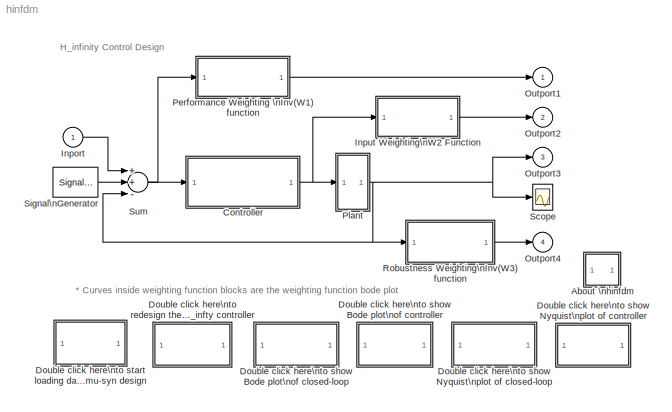
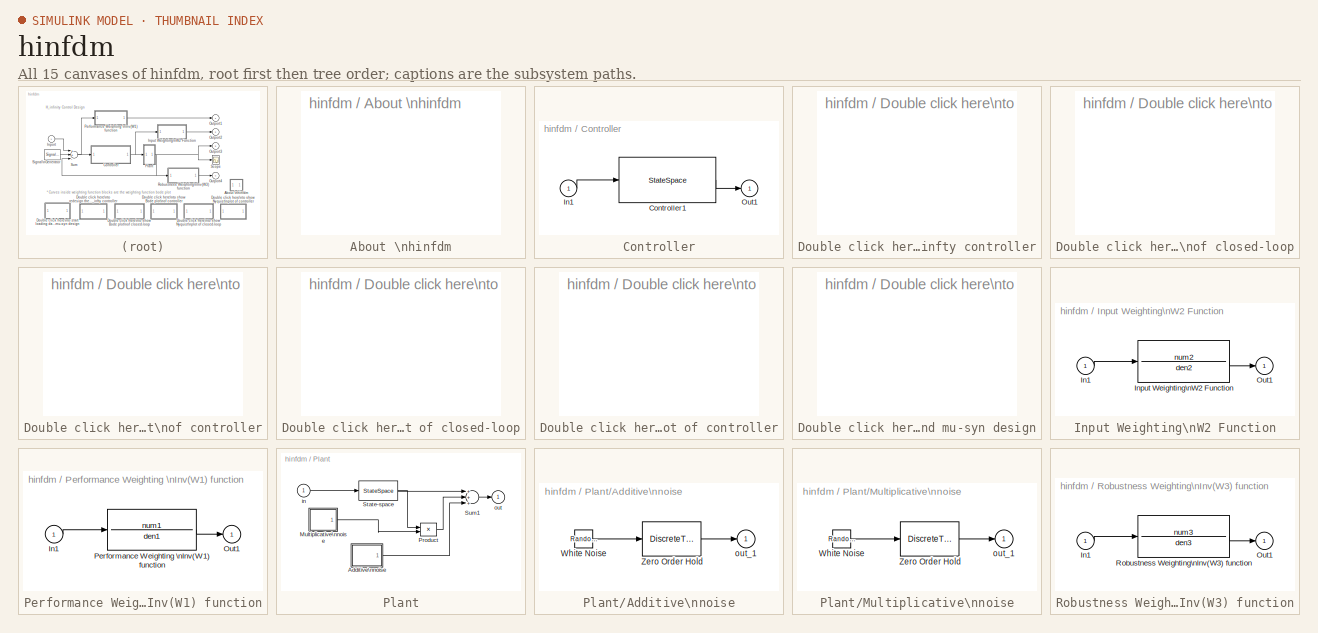
[diagram: thumbnail index - all 15 canvases of the model, root first then tree order]
MODEL hinfdm
KIND model
CONFIG AbsTol = 1e-6
CONFIG FixedStep = auto
CONFIG MaxStep = 0.1
CONFIG MinStep = auto
CONFIG PreLoadFcn = hinfdata
CONFIG RelTol = 1e-3
CONFIG Solver = ode23
CONFIG SolverMode = SingleTasking
CONFIG StartTime = 0.0
CONFIG StopTime = 200
BLOCK [SubSystem] About \nhinfdm
  MaskDisplay = disp('?')
  MaskIconFrame = on
  MaskIconOpaque = on
  MaskIconRotate = none
  MaskIconUnits = autoscale
  OpenFcn = clc; more(24); help hinfdata; more off
  Ports = []
  TreatAsAtomicUnit = off
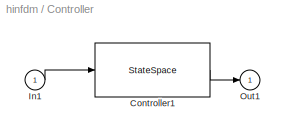
BLOCK [SubSystem] Controller
  MaskCallbackString = |||
  MaskDescription = H_infty controller.\n(Requires Control Toolbox and RCT)
  MaskDisplay = disp('H_infty Controller')
  MaskEnableString = on,on,on,on
  MaskHelp = H_infty controller design. Mask and unmask this block to see how it works.
  MaskIconFrame = on
  MaskIconOpaque = on
  MaskIconRotate = none
  MaskIconUnits = autoscale
  MaskInitialization = ae=@1; be=@2; ce=@3; de=@4;
  MaskPromptString = Controller Matrix A:|Controller Matrix B:|Controller Matrix C:|Controller Matrix D:
  MaskStyleString = edit,edit,edit,edit
  MaskToolTipString = on,on,on,on
  MaskTunableValueString = on,on,on,on
  MaskType = H_infty CONTROLLER
  MaskValueString = ae|be|ce|de
  MaskVarAliasString = ,,,
  MaskVisibilityString = on,on,on,on
  Ports = [1, 1]
  TreatAsAtomicUnit = off
BLOCK [StateSpace] Controller/Controller1
  A = ae
  B = be
  C = ce
  D = de
BLOCK [Inport] Controller/In1
BLOCK [Outport] Controller/Out1
  InitialOutput = 0
BLOCK [SubSystem] Double click here\nto redesign the\nH_infty controller
  MaskDisplay = disp('Re-Design')
  MaskIconFrame = on
  MaskIconOpaque = on
  MaskIconRotate = none
  MaskIconUnits = autoscale
  OpenFcn = if ~exist('obalreal'),fprintf('\\nMust be licensed for RCT Toolbox\\n'), else, fprintf('\\nCtrl_C to abort RCT Calculation\\n\\n'); hinfdes1; end
  Ports = []
  TreatAsAtomicUnit = off
BLOCK [SubSystem] Double click here\nto show Bode plot\nof closed-loop
  MaskDisplay = disp('Closed-Loop\\nBode Plot')
  MaskIconFrame = on
  MaskIconOpaque = on
  MaskIconRotate = none
  MaskIconUnits = autoscale
  OpenFcn = if ~exist('ae'),fprintf('\\nMust Load Data & Design First\\n'),else [x,y,z,w]=series(a,b,c,d,ae,be,ce,de);[x,y,z,w]=cloop(x,y,z,w,-1); [x,y,w]=bode(x,y,z,w); clf; subplot(211); loglog(w,x(:,1)); subplot(212); semilogx(w,y(:,1)); subplot(111);end
  Ports = []
  TreatAsAtomicUnit = off
BLOCK [SubSystem] Double click here\nto show Bode plot\nof controller
  MaskDisplay = disp('Controller\\nBode Plot')
  MaskIconFrame = on
  MaskIconOpaque = on
  MaskIconRotate = none
  MaskIconUnits = autoscale
  OpenFcn = if ~exist('ae'),fprintf('\\nMust Load Data & Design First\\n'),else  [x,y,w]=bode(ae,be,ce,de); clf; subplot(211); loglog(w,x); subplot(212); semilogx(w,y); subplot(111); end
  Ports = []
  TreatAsAtomicUnit = off
BLOCK [SubSystem] Double click here\nto show Nyquist\nplot of closed-loop
  MaskDisplay = disp('Closed-Loop\\nNyquist')
  MaskIconFrame = on
  MaskIconOpaque = on
  MaskIconRotate = none
  MaskIconUnits = autoscale
  OpenFcn = if ~exist('ae'), fprintf('\\nMust Load Data & Desgin First\\n'), else,[x,y,z,w]=feedback(a,b,c,d,ae,be,ce,de,-1); clf, nyquist(x,y,z,w); end
  Ports = []
  TreatAsAtomicUnit = off
BLOCK [SubSystem] Double click here\nto show Nyquist\nplot of controller
  MaskDisplay = disp('Controller\\nNyquist')
  MaskIconFrame = on
  MaskIconOpaque = on
  MaskIconRotate = none
  MaskIconUnits = autoscale
  OpenFcn = if ~exist('ae'), fprintf('\\nMust Load Data & Desgin First\\n'), else,clf; nyquist(ae,be,ce,de), end
  Ports = []
  TreatAsAtomicUnit = off
BLOCK [SubSystem] Double click here\nto start loading data\nand mu-syn design
  MaskDisplay = disp('Re-Load\\nData')
  MaskIconFrame = on
  MaskIconOpaque = on
  MaskIconRotate = none
  MaskIconUnits = autoscale
  OpenFcn = if ~exist('obalreal'),fprintf('\\nMust be licensed for RCT Toolbox\\n'), else, fprintf('\\nCtrl_C to abort RCT Calculation\\n\\n'); hinfdata;end
  Ports = []
  TreatAsAtomicUnit = off
BLOCK [Inport] Inport
BLOCK [SubSystem] Input Weighting\nW2 Function
  MaskCallbackString = |
  MaskDescription = Transfer Function\nnumerator and denominator:
  MaskDisplay = plot(log10(w2),log10(ma2));
  MaskEnableString = on,on
  MaskHelp = Transfer Function
  MaskIconFrame = on
  MaskIconOpaque = on
  MaskIconRotate = none
  MaskIconUnits = autoscale
  MaskInitialization = num2=@1;den2=@2;[ma2,pa2,w2]=bode(num2,den2);
  MaskPromptString = numerator:|denominator:
  MaskStyleString = edit,edit
  MaskToolTipString = on,on
  MaskTunableValueString = on,on
  MaskType = polynomial: num/den
  MaskValueString = num2|den2
  MaskVarAliasString = ,
  MaskVisibilityString = on,on
  Ports = [1, 1]
  TreatAsAtomicUnit = off
BLOCK [Inport] Input Weighting\nW2 Function/In1
BLOCK [TransferFcn] Input Weighting\nW2 Function/Input Weighting\nW2 Function
  Denominator = den2
  Numerator = num2
BLOCK [Outport] Input Weighting\nW2 Function/Out1
  InitialOutput = 0
BLOCK [Outport] Outport1
  InitialOutput = 0
BLOCK [Outport] Outport2
  InitialOutput = 0
  Port = 2
BLOCK [Outport] Outport3
  InitialOutput = 0
  Port = 3
BLOCK [Outport] Outport4
  InitialOutput = 0
  Port = 4
BLOCK [SubSystem] Performance Weighting \nInv(W1) function
  MaskCallbackString = |
  MaskDescription = Transfer function\n numerator and denominator
  MaskDisplay = plot(log10(w1),log10(ma1));
  MaskEnableString = on,on
  MaskHelp = Transfer function
  MaskIconFrame = on
  MaskIconOpaque = on
  MaskIconRotate = none
  MaskIconUnits = autoscale
  MaskInitialization = num1=@1;den1=@2;[ma1,ph1,w1]=bode(num1,den1);
  MaskPromptString = numerator:|denominator:
  MaskStyleString = edit,edit
  MaskToolTipString = on,on
  MaskTunableValueString = on,on
  MaskType = polynomial: num/den
  MaskValueString = num1|den1
  MaskVarAliasString = ,
  MaskVisibilityString = on,on
  Ports = [1, 1]
  TreatAsAtomicUnit = off
BLOCK [Inport] Performance Weighting \nInv(W1) function/In1
BLOCK [Outport] Performance Weighting \nInv(W1) function/Out1
  InitialOutput = 0
BLOCK [TransferFcn] Performance Weighting \nInv(W1) function/Performance Weighting \nInv(W1) function
  Denominator = den1
  Numerator = num1
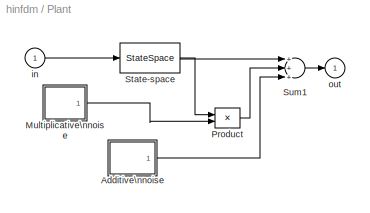
BLOCK [SubSystem] Plant
  Ports = [1, 1]
  TreatAsAtomicUnit = off
BLOCK [SubSystem] Plant/Additive\nnoise
  MaskCallbackString = ||
  MaskDescription = White noise for continuous (s-domain) systems.\nBand-limited using zero-order-hold.
  MaskDisplay = plot(1:20,rand(1,20))
  MaskEnableString = on,on,on
  MaskHelp = Implemented using white noise into Zero Order Hold block. For faster simulation set sample time to highest value possible but in accordance with the fastest dynamics of system.
  MaskIconFrame = on
  MaskIconOpaque = on
  MaskIconRotate = none
  MaskIconUnits = autoscale
  MaskInitialization = Cov = @1; Ts = @2; seed = @3; r = rand(1,12)-0.5;
  MaskPromptString = Noise Variance:|Sample Time:|Seed
  MaskStyleString = edit,edit,edit
  MaskToolTipString = on,on,on
  MaskTunableValueString = on,on,on
  MaskType = Input Noise
  MaskValueString = 0.1|1|12345
  MaskVarAliasString = ,,
  MaskVisibilityString = on,on,on
  Ports = [0, 1]
  TreatAsAtomicUnit = off
BLOCK [RandomNumber] Plant/Additive\nnoise/White Noise
  SampleTime = Ts
  Seed = seed
BLOCK [DiscreteTransferFcn] Plant/Additive\nnoise/Zero Order Hold
  Denominator = [sqrt(Ts)]
  Numerator = [sqrt(Cov)]
  SampleTime = Ts
BLOCK [Outport] Plant/Additive\nnoise/out_1
  InitialOutput = 0
BLOCK [SubSystem] Plant/Multiplicative\nnoise
  MaskCallbackString = ||
  MaskDescription = White noise for continuous (s-domain) systems.\nBand-limited using zero-order-hold.
  MaskDisplay = plot(1:20,rand(1,20))
  MaskEnableString = on,on,on
  MaskHelp = Implemented using white noise into Zero Order Hold block. For faster simulation set sample time to highest value possible but in accordance with the fastest dynamics of system.
  MaskIconFrame = on
  MaskIconOpaque = on
  MaskIconRotate = none
  MaskIconUnits = autoscale
  MaskInitialization = Cov = @1; Ts = @2; seed = @3; r = rand(1,12)-0.5;
  MaskPromptString = Noise Variance:|Sample Time:|Seed
  MaskStyleString = edit,edit,edit
  MaskToolTipString = on,on,on
  MaskTunableValueString = on,on,on
  MaskType = Input Noise
  MaskValueString = 0.1|1|6455
  MaskVarAliasString = ,,
  MaskVisibilityString = on,on,on
  Ports = [0, 1]
  TreatAsAtomicUnit = off
BLOCK [RandomNumber] Plant/Multiplicative\nnoise/White Noise
  SampleTime = Ts
  Seed = seed
BLOCK [DiscreteTransferFcn] Plant/Multiplicative\nnoise/Zero Order Hold
  Denominator = [sqrt(Ts)]
  Numerator = [sqrt(Cov)]
  SampleTime = Ts
BLOCK [Outport] Plant/Multiplicative\nnoise/out_1
  InitialOutput = 0
BLOCK [Product] Plant/Product
  Ports = [2, 1]
BLOCK [StateSpace] Plant/State-space
  A = a
  B = b
  C = c
  D = d
BLOCK [Sum] Plant/Sum1
  Inputs = +++
  Ports = [3, 1]
BLOCK [Inport] Plant/in
BLOCK [Outport] Plant/out
  InitialOutput = 0
BLOCK [SubSystem] Robustness Weighting\nInv(W3) function
  MaskCallbackString = |
  MaskDescription = Transfer Function\nnumerator and denominator:
  MaskDisplay = plot(log10(w3),log10(ma3))
  MaskEnableString = on,on
  MaskHelp = Transfer Function
  MaskIconFrame = on
  MaskIconOpaque = on
  MaskIconRotate = none
  MaskIconUnits = autoscale
  MaskInitialization = num3=@1;den3=@2;[ma3,ph3,w3]=bode(num3,den3);
  MaskPromptString = numerator:|denominator:
  MaskStyleString = edit,edit
  MaskToolTipString = on,on
  MaskTunableValueString = on,on
  MaskType = polynomial: num/den
  MaskValueString = num3|den3
  MaskVarAliasString = ,
  MaskVisibilityString = on,on
  Ports = [1, 1]
  TreatAsAtomicUnit = off
BLOCK [Inport] Robustness Weighting\nInv(W3) function/In1
BLOCK [Outport] Robustness Weighting\nInv(W3) function/Out1
  InitialOutput = 0
BLOCK [TransferFcn] Robustness Weighting\nInv(W3) function/Robustness Weighting\nInv(W3) function
  Denominator = den3
  Numerator = num3
BLOCK [Scope] Scope
  DataFormat = Array
  NumInputPorts = 1
  Ports = [1]
  TickLabels = on
  TimeRange = 10.000000
BLOCK [SignalGenerator] Signal\nGenerator
BLOCK [Sum] Sum
  Inputs = ++-
  Ports = [3, 1]
ANNOTATION (root): * Curves inside weighting function blocks are the weighting function bode plot
ANNOTATION (root): H_infinity Control Design
LINE Controller/Controller1:1 -> Controller/Out1:1
LINE Controller/In1:1 -> Controller/Controller1:1
NET Controller:1 -> Input Weighting\nW2 Function:1, Plant:1
LINE Inport:1 -> Sum:1
LINE Input Weighting\nW2 Function/In1:1 -> Input Weighting\nW2 Function/Input Weighting\nW2 Function:1
LINE Input Weighting\nW2 Function/Input Weighting\nW2 Function:1 -> Input Weighting\nW2 Function/Out1:1
LINE Input Weighting\nW2 Function:1 -> Outport2:1
LINE Performance Weighting \nInv(W1) function/In1:1 -> Performance Weighting \nInv(W1) function/Performance Weighting \nInv(W1) function:1
LINE Performance Weighting \nInv(W1) function/Performance Weighting \nInv(W1) function:1 -> Performance Weighting \nInv(W1) function/Out1:1
LINE Performance Weighting \nInv(W1) function:1 -> Outport1:1
LINE Plant/Additive\nnoise/White Noise:1 -> Plant/Additive\nnoise/Zero Order Hold:1
LINE Plant/Additive\nnoise/Zero Order Hold:1 -> Plant/Additive\nnoise/out_1:1
LINE Plant/Additive\nnoise:1 -> Plant/Sum1:3
LINE Plant/Multiplicative\nnoise/White Noise:1 -> Plant/Multiplicative\nnoise/Zero Order Hold:1
LINE Plant/Multiplicative\nnoise/Zero Order Hold:1 -> Plant/Multiplicative\nnoise/out_1:1
LINE Plant/Multiplicative\nnoise:1 -> Plant/Product:2
LINE Plant/Product:1 -> Plant/Sum1:2
NET Plant/State-space:1 -> Plant/Product:1, Plant/Sum1:1
LINE Plant/Sum1:1 -> Plant/out:1
LINE Plant/in:1 -> Plant/State-space:1
NET Plant:1 -> Outport3:1, Robustness Weighting\nInv(W3) function:1, Scope:1, Sum:3
LINE Robustness Weighting\nInv(W3) function/In1:1 -> Robustness Weighting\nInv(W3) function/Robustness Weighting\nInv(W3) function:1
LINE Robustness Weighting\nInv(W3) function/Robustness Weighting\nInv(W3) function:1 -> Robustness Weighting\nInv(W3) function/Out1:1
LINE Robustness Weighting\nInv(W3) function:1 -> Outport4:1
LINE Signal\nGenerator:1 -> Sum:2
NET Sum:1 -> Controller:1, Performance Weighting \nInv(W1) function:1
note: NET lines group one-source signal fan-out (src -> all destinations, sorted); 1:1 wires keep LINE
